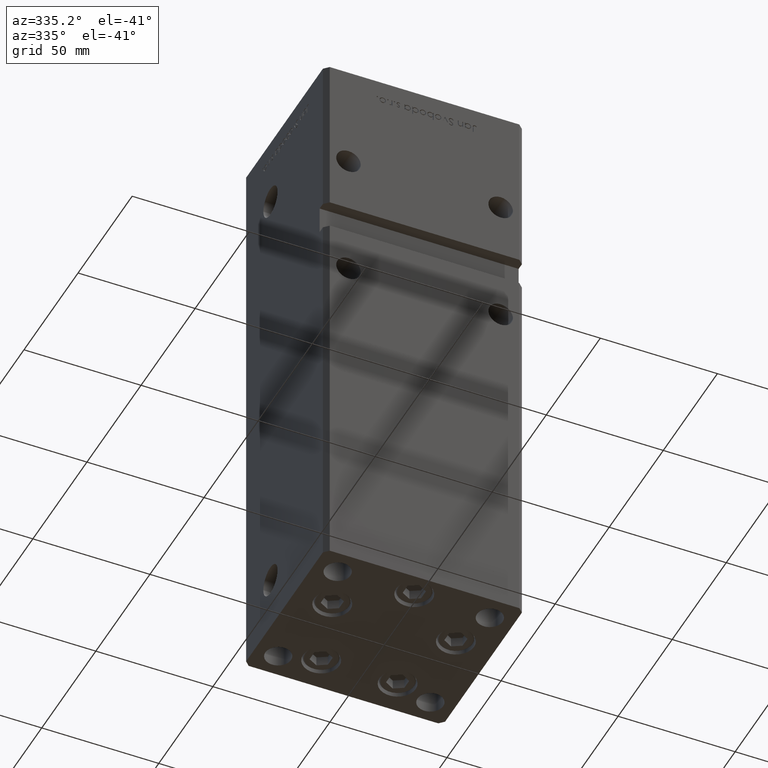
[diagram: clean part render]
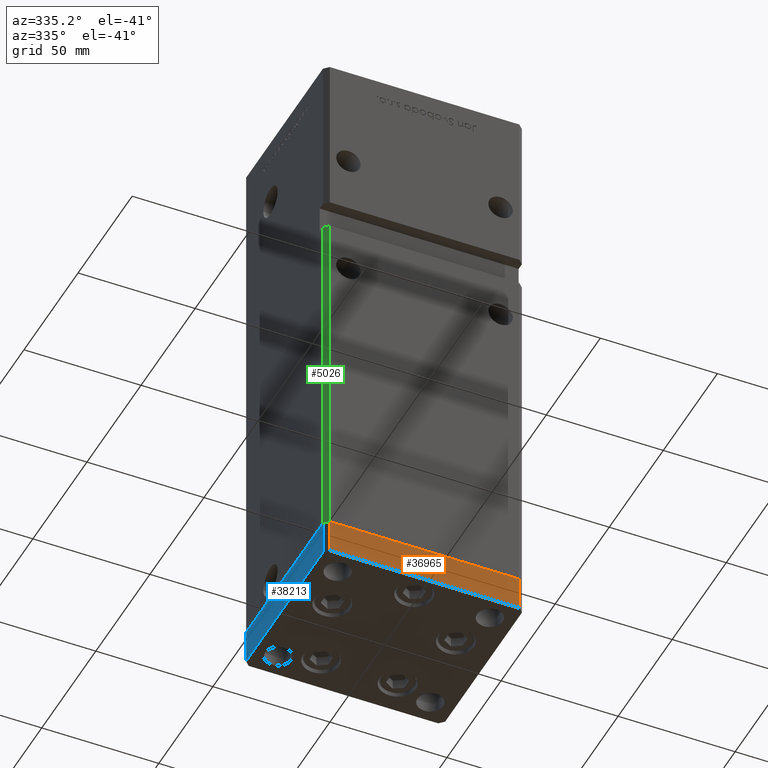
[diagram: same view with three faces highlighted in distinct colors, each labeled with its STEP entity id]
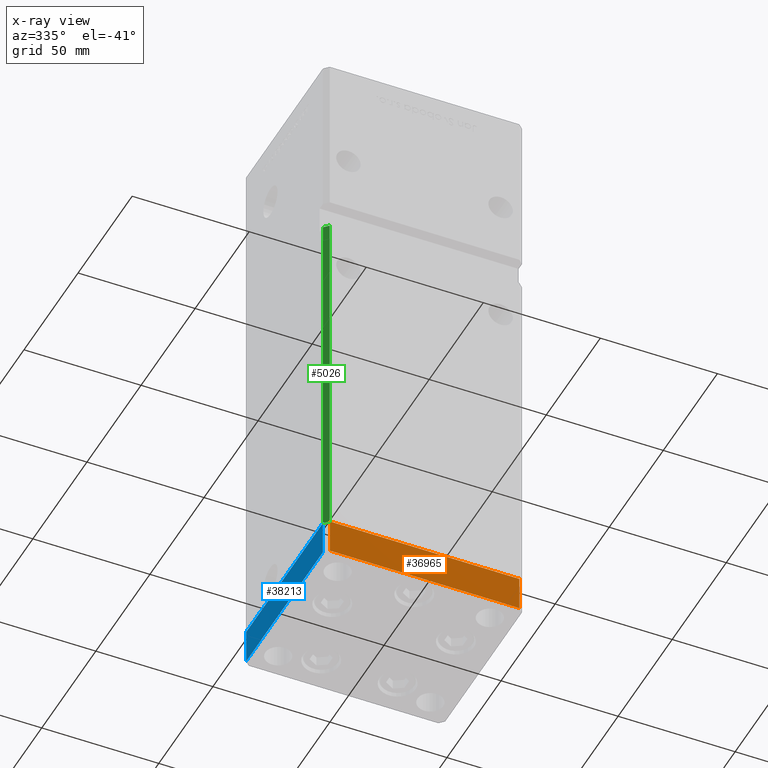
[diagram: x-ray of the same camera — body ghosted, the three highlighted faces saturated]
A machine part, auxiliary view with three faces highlighted in distinct colors.
The next image is the same camera in x-ray (body ghosted, the three faces saturated) — at least one of them is partly hidden behind the body in this view.
Their STEP definitions:

[orange] entity #36965 — the highlighted planar face has unit normal (0, -1, -0).
#303 = VECTOR ( 'NONE', #16397, 1000.000000000000000 ) ;
#4722 = EDGE_CURVE ( 'NONE', #24390, #8790, #12114, .T. ) ;
#6723 = DIRECTION ( 'NONE',  ( 1.000000000000000000, 1.713307136767217096E-16, 0.000000000000000000 ) ) ;
#8790 = VERTEX_POINT ( 'NONE', #44187 ) ;
#9916 = ORIENTED_EDGE ( 'NONE', *, *, #36930, .F. ) ;
#11570 = LINE ( 'NONE', #32517, #303 ) ;
#12087 = CARTESIAN_POINT ( 'NONE',  ( 40.50000000000000000, -37.50000000000000711, -15.00000000000000000 ) ) ;
#12114 = LINE ( 'NONE', #28508, #44562 ) ;
#12379 = DIRECTION ( 'NONE',  ( 0.000000000000000000, 0.000000000000000000, 1.000000000000000000 ) ) ;
#14248 = CARTESIAN_POINT ( 'NONE',  ( -40.49999999999999289, -37.50000000000002132, 0.000000000000000000 ) ) ;
#14743 = CARTESIAN_POINT ( 'NONE',  ( -40.49999999999999289, -37.50000000000002132, -15.00000000000000000 ) ) ;
#16397 = DIRECTION ( 'NONE',  ( 1.000000000000000000, 1.713307136767217096E-16, 0.000000000000000000 ) ) ;
#17036 = VERTEX_POINT ( 'NONE', #36671 ) ;
#19071 = CARTESIAN_POINT ( 'NONE',  ( -40.49999999999999289, -37.50000000000002132, -15.00000000000000000 ) ) ;
#21483 = EDGE_LOOP ( 'NONE', ( #9916, #34430, #38076, #45645 ) ) ;
#24390 = VERTEX_POINT ( 'NONE', #12087 ) ;
#26609 = DIRECTION ( 'NONE',  ( 1.000000000000000000, 1.713307136767217096E-16, 0.000000000000000000 ) ) ;
#28508 = CARTESIAN_POINT ( 'NONE',  ( 40.50000000000000000, -37.50000000000000711, -15.00000000000000000 ) ) ;
#30367 = LINE ( 'NONE', #14248, #41598 ) ;
#30639 = EDGE_CURVE ( 'NONE', #17036, #32062, #38639, .T. ) ;
#31700 = PLANE ( 'NONE',  #47624 ) ;
#32062 = VERTEX_POINT ( 'NONE', #35826 ) ;
#32220 = FACE_OUTER_BOUND ( 'NONE', #21483, .T. ) ;
#32517 = CARTESIAN_POINT ( 'NONE',  ( -40.49999999999999289, -37.50000000000002132, -15.00000000000000000 ) ) ;
#33659 = EDGE_CURVE ( 'NONE', #17036, #24390, #11570, .T. ) ;
#34430 = ORIENTED_EDGE ( 'NONE', *, *, #30639, .F. ) ;
#35826 = CARTESIAN_POINT ( 'NONE',  ( -40.49999999999999289, -37.50000000000002132, 0.000000000000000000 ) ) ;
#36671 = CARTESIAN_POINT ( 'NONE',  ( -40.49999999999999289, -37.50000000000002132, -15.00000000000000000 ) ) ;
#36930 = EDGE_CURVE ( 'NONE', #32062, #8790, #30367, .T. ) ;
#36965 = ADVANCED_FACE ( 'NONE', ( #32220 ), #31700, .T. ) ;
#38076 = ORIENTED_EDGE ( 'NONE', *, *, #33659, .T. ) ;
#38639 = LINE ( 'NONE', #14743, #48275 ) ;
#41598 = VECTOR ( 'NONE', #26609, 1000.000000000000000 ) ;
#44187 = CARTESIAN_POINT ( 'NONE',  ( 40.50000000000000000, -37.50000000000000711, 0.000000000000000000 ) ) ;
#44562 = VECTOR ( 'NONE', #12379, 1000.000000000000000 ) ;
#45645 = ORIENTED_EDGE ( 'NONE', *, *, #4722, .T. ) ;
#47624 = AXIS2_PLACEMENT_3D ( 'NONE', #19071, #52123, #6723 ) ;
#48275 = VECTOR ( 'NONE', #51820, 1000.000000000000000 ) ;
#51820 = DIRECTION ( 'NONE',  ( 0.000000000000000000, 0.000000000000000000, 1.000000000000000000 ) ) ;
#52123 = DIRECTION ( 'NONE',  ( 1.713307136767217096E-16, -1.000000000000000000, 0.000000000000000000 ) ) ;

[blue] entity #38213 — the highlighted planar face has unit normal (-1, -0, 0).
#361 = VECTOR ( 'NONE', #47510, 1000.000000000000000 ) ;
#5516 = DIRECTION ( 'NONE',  ( -1.172770800660376741E-15, 1.000000000000000000, 0.000000000000000000 ) ) ;
#6219 = VERTEX_POINT ( 'NONE', #36240 ) ;
#10653 = ORIENTED_EDGE ( 'NONE', *, *, #23769, .T. ) ;
#12672 = LINE ( 'NONE', #28532, #36375 ) ;
#12709 = CARTESIAN_POINT ( 'NONE',  ( 42.49999999999992895, 35.50000000000000000, 0.000000000000000000 ) ) ;
#15000 = LINE ( 'NONE', #27619, #361 ) ;
#15222 = EDGE_CURVE ( 'NONE', #17802, #52979, #35971, .T. ) ;
#17715 = CARTESIAN_POINT ( 'NONE',  ( 42.50000000000000711, -35.50000000000000000, 0.000000000000000000 ) ) ;
#17802 = VERTEX_POINT ( 'NONE', #38057 ) ;
#19815 = ORIENTED_EDGE ( 'NONE', *, *, #29125, .F. ) ;
#21372 = LINE ( 'NONE', #29439, #31509 ) ;
#23321 = EDGE_CURVE ( 'NONE', #6219, #45444, #12672, .T. ) ;
#23649 = AXIS2_PLACEMENT_3D ( 'NONE', #53114, #45030, #45560 ) ;
#23769 = EDGE_CURVE ( 'NONE', #6219, #17802, #15000, .T. ) ;
#27619 = CARTESIAN_POINT ( 'NONE',  ( 42.50000000000000711, -35.50000000000000000, -15.00000000000000000 ) ) ;
#28532 = CARTESIAN_POINT ( 'NONE',  ( 42.50000000000000711, -35.50000000000000000, -15.00000000000000000 ) ) ;
#29125 = EDGE_CURVE ( 'NONE', #45444, #52979, #21372, .T. ) ;
#29417 = VECTOR ( 'NONE', #39739, 1000.000000000000000 ) ;
#29439 = CARTESIAN_POINT ( 'NONE',  ( 42.50000000000000711, -35.50000000000000000, 0.000000000000000000 ) ) ;
#31509 = VECTOR ( 'NONE', #5516, 1000.000000000000000 ) ;
#31731 = EDGE_LOOP ( 'NONE', ( #19815, #48804, #10653, #44484 ) ) ;
#35971 = LINE ( 'NONE', #52383, #29417 ) ;
#36240 = CARTESIAN_POINT ( 'NONE',  ( 42.50000000000000711, -35.50000000000000000, -15.00000000000000000 ) ) ;
#36375 = VECTOR ( 'NONE', #48957, 1000.000000000000000 ) ;
#38057 = CARTESIAN_POINT ( 'NONE',  ( 42.49999999999992895, 35.50000000000000000, -15.00000000000000000 ) ) ;
#38213 = ADVANCED_FACE ( 'NONE', ( #41253 ), #40727, .T. ) ;
#39739 = DIRECTION ( 'NONE',  ( 0.000000000000000000, 0.000000000000000000, 1.000000000000000000 ) ) ;
#40727 = PLANE ( 'NONE',  #23649 ) ;
#41253 = FACE_OUTER_BOUND ( 'NONE', #31731, .T. ) ;
#44484 = ORIENTED_EDGE ( 'NONE', *, *, #15222, .T. ) ;
#45030 = DIRECTION ( 'NONE',  ( 1.000000000000000000, 1.172770800660376741E-15, -0.000000000000000000 ) ) ;
#45444 = VERTEX_POINT ( 'NONE', #17715 ) ;
#45560 = DIRECTION ( 'NONE',  ( -1.172770800660376741E-15, 1.000000000000000000, 0.000000000000000000 ) ) ;
#47510 = DIRECTION ( 'NONE',  ( -1.172770800660376741E-15, 1.000000000000000000, 0.000000000000000000 ) ) ;
#48804 = ORIENTED_EDGE ( 'NONE', *, *, #23321, .F. ) ;
#48957 = DIRECTION ( 'NONE',  ( 0.000000000000000000, 0.000000000000000000, 1.000000000000000000 ) ) ;
#52383 = CARTESIAN_POINT ( 'NONE',  ( 42.49999999999992895, 35.50000000000000000, -15.00000000000000000 ) ) ;
#52979 = VERTEX_POINT ( 'NONE', #12709 ) ;
#53114 = CARTESIAN_POINT ( 'NONE',  ( 42.50000000000000711, -35.50000000000000000, -15.00000000000000000 ) ) ;

[green] entity #5026 — the highlighted planar face has unit normal (0.7071, 0.7071, 0).
#133 = CARTESIAN_POINT ( 'NONE',  ( -40.49999999999998579, -37.50000000000000711, 0.000000000000000000 ) ) ;
#2499 = EDGE_CURVE ( 'NONE', #13659, #44490, #42822, .T. ) ;
#5026 = ADVANCED_FACE ( 'NONE', ( #23631 ), #25469, .F. ) ;
#5296 = DIRECTION ( 'NONE',  ( -0.7071067811865474617, 0.7071067811865474617, 0.000000000000000000 ) ) ;
#6712 = ORIENTED_EDGE ( 'NONE', *, *, #38004, .F. ) ;
#8119 = CARTESIAN_POINT ( 'NONE',  ( -42.49999999999998579, -35.50000000000000711, 0.000000000000000000 ) ) ;
#8660 = ORIENTED_EDGE ( 'NONE', *, *, #43157, .T. ) ;
#9895 = VECTOR ( 'NONE', #36764, 1000.000000000000000 ) ;
#13373 = CARTESIAN_POINT ( 'NONE',  ( -42.49999999999998579, -35.49999999999996447, 152.0000000000000284 ) ) ;
#13659 = VERTEX_POINT ( 'NONE', #13373 ) ;
#14590 = VECTOR ( 'NONE', #51162, 1000.000000000000000 ) ;
#15278 = LINE ( 'NONE', #27113, #27716 ) ;
#19025 = CARTESIAN_POINT ( 'NONE',  ( -42.49999999999998579, -35.50000000000000711, 0.000000000000000000 ) ) ;
#19711 = EDGE_LOOP ( 'NONE', ( #6712, #38143, #30319, #8660 ) ) ;
#20394 = CARTESIAN_POINT ( 'NONE',  ( -40.49999999999998579, -37.50000000000000711, 218.5000000000000000 ) ) ;
#20520 = AXIS2_PLACEMENT_3D ( 'NONE', #21429, #29496, #5296 ) ;
#21429 = CARTESIAN_POINT ( 'NONE',  ( -42.49999999999998579, -35.50000000000000711, 218.5000000000000000 ) ) ;
#22539 = DIRECTION ( 'NONE',  ( -0.7071067811865474617, 0.7071067811865474617, 0.000000000000000000 ) ) ;
#22766 = VECTOR ( 'NONE', #36055, 1000.000000000000114 ) ;
#23631 = FACE_OUTER_BOUND ( 'NONE', #19711, .T. ) ;
#25120 = VERTEX_POINT ( 'NONE', #51906 ) ;
#25469 = PLANE ( 'NONE',  #20520 ) ;
#27113 = CARTESIAN_POINT ( 'NONE',  ( -42.49999999999998579, -35.50000000000000711, 152.0000000000000284 ) ) ;
#27716 = VECTOR ( 'NONE', #22539, 1000.000000000000114 ) ;
#29496 = DIRECTION ( 'NONE',  ( 0.7071067811865475727, 0.7071067811865475727, -0.000000000000000000 ) ) ;
#30205 = CARTESIAN_POINT ( 'NONE',  ( -42.49999999999998579, -35.50000000000000711, 218.5000000000000000 ) ) ;
#30319 = ORIENTED_EDGE ( 'NONE', *, *, #2499, .T. ) ;
#30672 = EDGE_CURVE ( 'NONE', #25120, #13659, #15278, .T. ) ;
#33002 = LINE ( 'NONE', #20394, #9895 ) ;
#36055 = DIRECTION ( 'NONE',  ( 0.7071067811865474617, -0.7071067811865474617, 0.000000000000000000 ) ) ;
#36764 = DIRECTION ( 'NONE',  ( -0.000000000000000000, -0.000000000000000000, -1.000000000000000000 ) ) ;
#38004 = EDGE_CURVE ( 'NONE', #25120, #48215, #33002, .T. ) ;
#38143 = ORIENTED_EDGE ( 'NONE', *, *, #30672, .T. ) ;
#42822 = LINE ( 'NONE', #30205, #14590 ) ;
#43157 = EDGE_CURVE ( 'NONE', #44490, #48215, #48433, .T. ) ;
#44490 = VERTEX_POINT ( 'NONE', #19025 ) ;
#48215 = VERTEX_POINT ( 'NONE', #133 ) ;
#48433 = LINE ( 'NONE', #8119, #22766 ) ;
#51162 = DIRECTION ( 'NONE',  ( -0.000000000000000000, -0.000000000000000000, -1.000000000000000000 ) ) ;
#51906 = CARTESIAN_POINT ( 'NONE',  ( -40.49999999999998579, -37.50000000000000711, 152.0000000000000284 ) ) ;